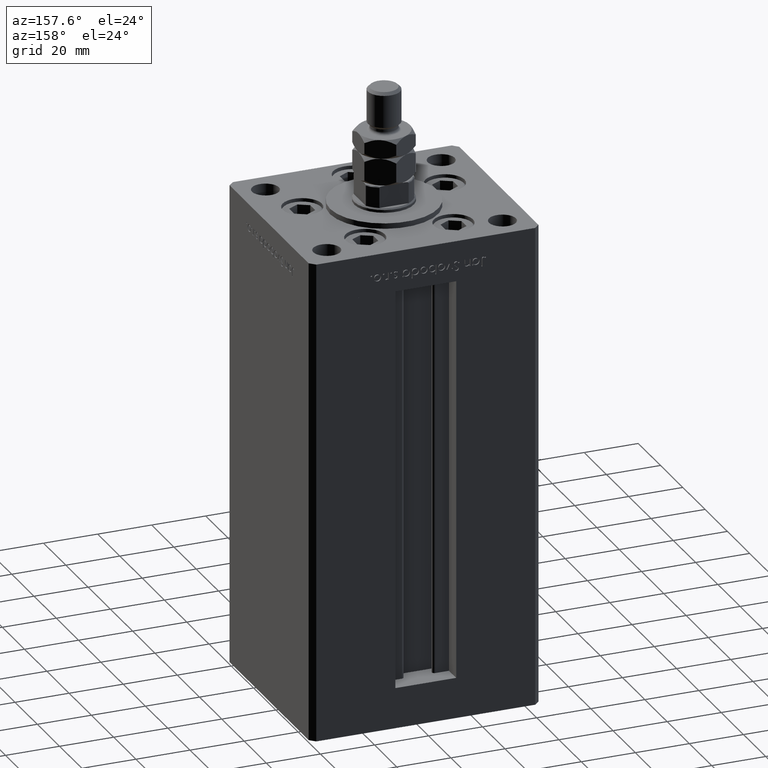
[diagram: clean part render]
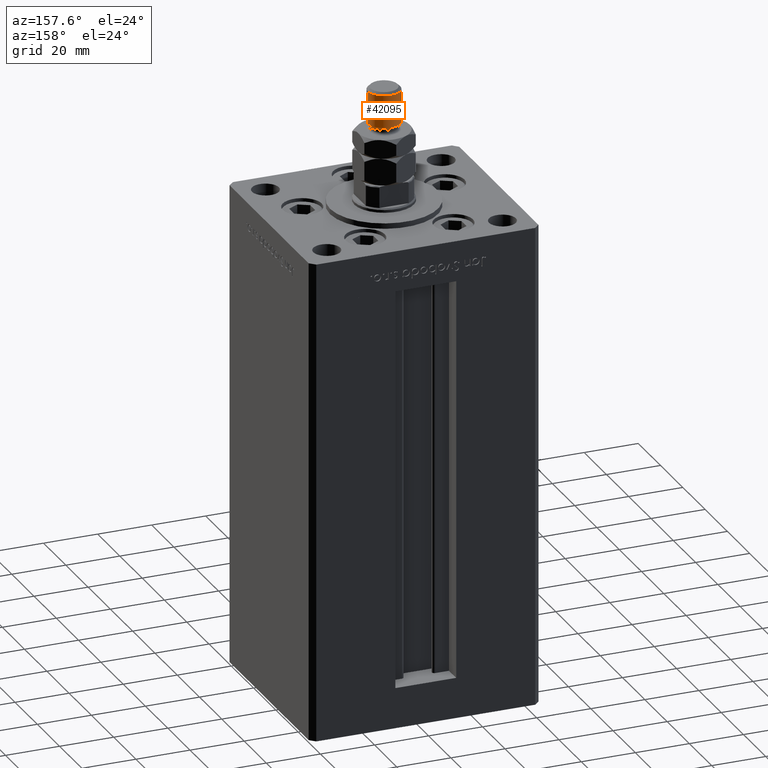
[diagram: same view with one face highlighted and labeled with its STEP entity id]
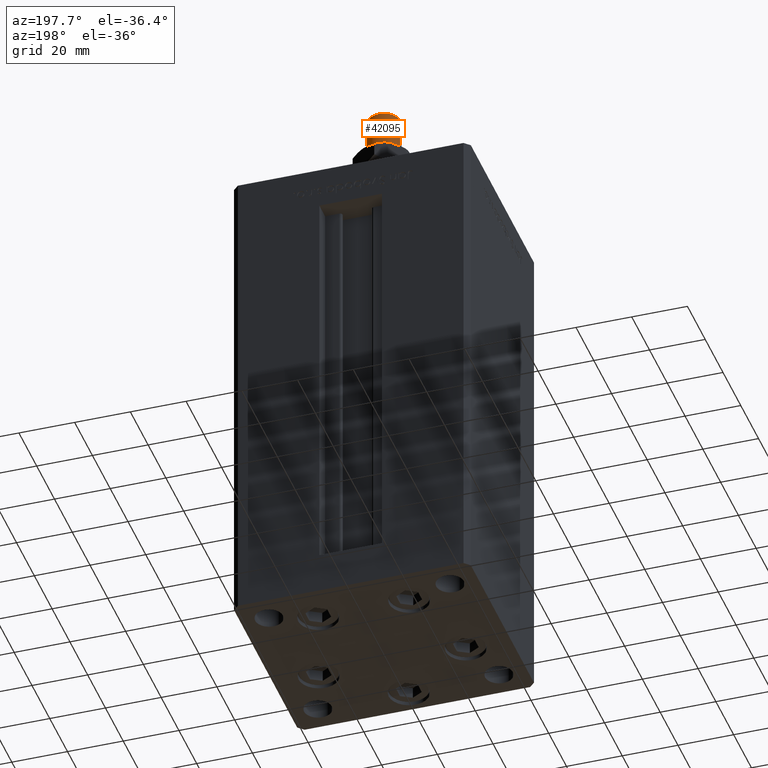
[diagram: same view with one face highlighted and labeled with its STEP entity id]
A machine part, auxiliary view. The second image highlights one B-rep face of the part: STEP entity #42095.
A second angle (auxiliary view) of the same face is appended — the face is thin or edge-on in the first view.
In plain terms, the highlighted cylindrical surface (edge-blend (fillet) strip) has radius 6 mm, axis along (-0, -0, -1).
Its self-contained STEP definition (entity closure, byte-faithful):
#1543 = EDGE_LOOP ( 'NONE', ( #12134, #29525, #10530, #49371 ) ) ;
#1588 = VERTEX_POINT ( 'NONE', #43902 ) ;
#3360 = CIRCLE ( 'NONE', #37199, 6.000000000000000888 ) ;
#4814 = CARTESIAN_POINT ( 'NONE',  ( 6.000000000000000888, 7.347880794884120722E-16, 33.00000000000000000 ) ) ;
#6483 = DIRECTION ( 'NONE',  ( 0.000000000000000000, 0.000000000000000000, -1.000000000000000000 ) ) ;
#6770 = CARTESIAN_POINT ( 'NONE',  ( 0.000000000000000000, 0.000000000000000000, 33.00000000000000000 ) ) ;
#8134 = EDGE_CURVE ( 'NONE', #40888, #9660, #33082, .T. ) ;
#8354 = AXIS2_PLACEMENT_3D ( 'NONE', #6770, #48105, #44284 ) ;
#9660 = VERTEX_POINT ( 'NONE', #11332 ) ;
#10530 = ORIENTED_EDGE ( 'NONE', *, *, #26095, .T. ) ;
#11332 = CARTESIAN_POINT ( 'NONE',  ( 6.000000000000000888, 7.347880794884120722E-16, 20.00000000000000711 ) ) ;
#12134 = ORIENTED_EDGE ( 'NONE', *, *, #48890, .T. ) ;
#12719 = VECTOR ( 'NONE', #27756, 1000.000000000000000 ) ;
#12906 = DIRECTION ( 'NONE',  ( -0.000000000000000000, -0.000000000000000000, 1.000000000000000000 ) ) ;
#15718 = CARTESIAN_POINT ( 'NONE',  ( -6.000000000000000888, 0.000000000000000000, 32.00000000000000000 ) ) ;
#19902 = VERTEX_POINT ( 'NONE', #15718 ) ;
#22707 = CIRCLE ( 'NONE', #53125, 6.000000000000000888 ) ;
#23058 = CARTESIAN_POINT ( 'NONE',  ( 0.000000000000000000, 0.000000000000000000, 32.00000000000000000 ) ) ;
#23330 = CARTESIAN_POINT ( 'NONE',  ( 6.000000000000000888, 7.347880794884120722E-16, 32.00000000000000000 ) ) ;
#24601 = FACE_OUTER_BOUND ( 'NONE', #1543, .T. ) ;
#25147 = DIRECTION ( 'NONE',  ( 1.000000000000000000, 0.000000000000000000, 0.000000000000000000 ) ) ;
#26068 = DIRECTION ( 'NONE',  ( 1.000000000000000000, 0.000000000000000000, 0.000000000000000000 ) ) ;
#26095 = EDGE_CURVE ( 'NONE', #9660, #1588, #22707, .T. ) ;
#27756 = DIRECTION ( 'NONE',  ( -0.000000000000000000, -0.000000000000000000, -1.000000000000000000 ) ) ;
#29525 = ORIENTED_EDGE ( 'NONE', *, *, #8134, .T. ) ;
#33082 = LINE ( 'NONE', #4814, #53195 ) ;
#35913 = LINE ( 'NONE', #52508, #12719 ) ;
#37199 = AXIS2_PLACEMENT_3D ( 'NONE', #23058, #6483, #26068 ) ;
#38510 = DIRECTION ( 'NONE',  ( -0.000000000000000000, -0.000000000000000000, -1.000000000000000000 ) ) ;
#40888 = VERTEX_POINT ( 'NONE', #23330 ) ;
#42095 = ADVANCED_FACE ( 'NONE', ( #24601 ), #44023, .T. ) ;
#43902 = CARTESIAN_POINT ( 'NONE',  ( -6.000000000000000888, 0.000000000000000000, 20.00000000000000711 ) ) ;
#44023 = CYLINDRICAL_SURFACE ( 'NONE', #8354, 6.000000000000000888 ) ;
#44100 = EDGE_CURVE ( 'NONE', #19902, #1588, #35913, .T. ) ;
#44284 = DIRECTION ( 'NONE',  ( -1.000000000000000000, 0.000000000000000000, 0.000000000000000000 ) ) ;
#48105 = DIRECTION ( 'NONE',  ( -0.000000000000000000, -0.000000000000000000, -1.000000000000000000 ) ) ;
#48890 = EDGE_CURVE ( 'NONE', #19902, #40888, #3360, .T. ) ;
#49371 = ORIENTED_EDGE ( 'NONE', *, *, #44100, .F. ) ;
#52508 = CARTESIAN_POINT ( 'NONE',  ( -6.000000000000000888, 0.000000000000000000, 33.00000000000000000 ) ) ;
#53125 = AXIS2_PLACEMENT_3D ( 'NONE', #53193, #12906, #25147 ) ;
#53193 = CARTESIAN_POINT ( 'NONE',  ( 0.000000000000000000, 0.000000000000000000, 20.00000000000000711 ) ) ;
#53195 = VECTOR ( 'NONE', #38510, 1000.000000000000000 ) ;